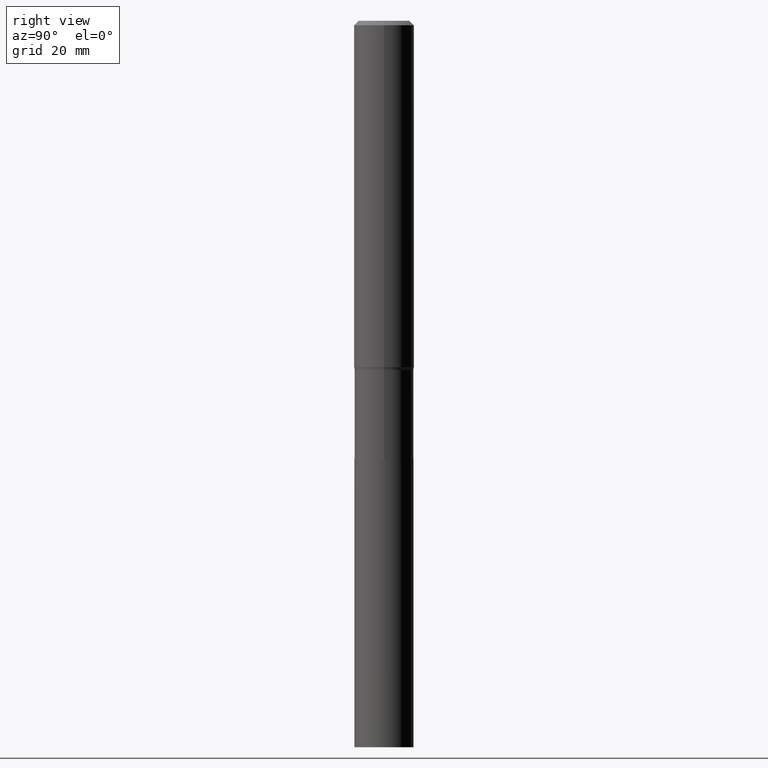
[diagram: clean part render]
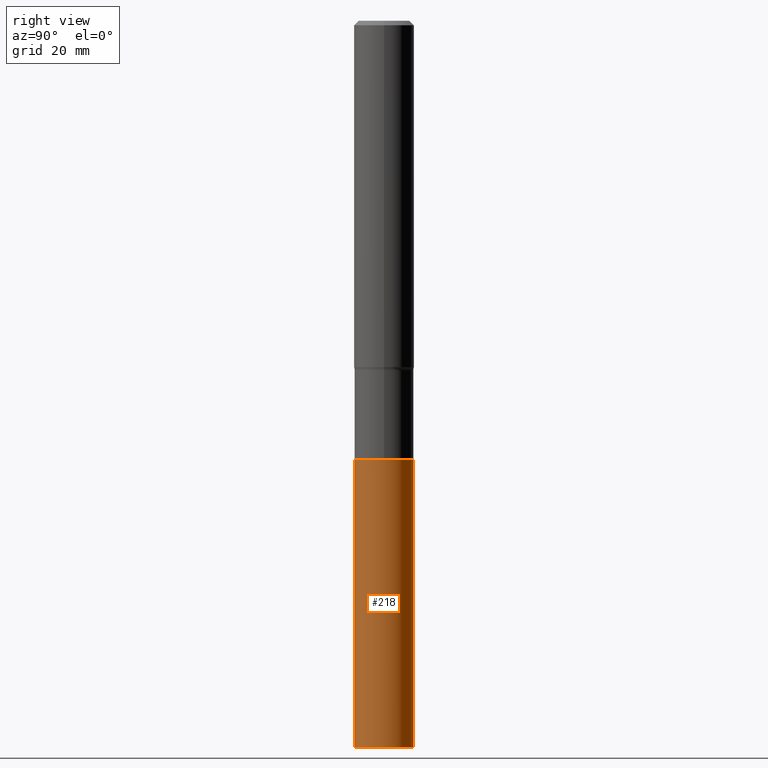
[diagram: same view with one face highlighted and labeled with its STEP entity id]
A machine part, right view. The second image highlights one B-rep face of the part: STEP entity #218.
In plain terms, the highlighted cylindrical surface (edge-blend (fillet) strip) has radius 5.9004 mm, axis along (-0, 0, 1).
Its self-contained STEP definition (entity closure, byte-faithful):
#6 = DIRECTION ( 'NONE',  ( -2.445459373819195632E-29, 3.491494846528029664E-15, 1.000000000000000000 ) ) ;
#26 = AXIS2_PLACEMENT_3D ( 'NONE', #360, #411, #195 ) ;
#31 = FACE_OUTER_BOUND ( 'NONE', #463, .T. ) ;
#35 = DIRECTION ( 'NONE',  ( -2.445459373819195632E-29, 3.491494846528030059E-15, 1.000000000000000000 ) ) ;
#36 = CARTESIAN_POINT ( 'NONE',  ( -1.622142230026380258E-15, -0.2323000000000199350, -5.708700000000000330 ) ) ;
#56 = VECTOR ( 'NONE', #375, 39.37007874015748143 ) ;
#59 = LINE ( 'NONE', #332, #212 ) ;
#63 = ORIENTED_EDGE ( 'NONE', *, *, #154, .F. ) ;
#71 = DIRECTION ( 'NONE',  ( -6.982962677686265922E-15, -1.000000000000000000, 2.351999994545211393E-15 ) ) ;
#72 = EDGE_CURVE ( 'NONE', #229, #157, #296, .T. ) ;
#101 = DIRECTION ( 'NONE',  ( -6.982962677686265922E-15, -1.000000000000000000, 2.351999994545211393E-15 ) ) ;
#107 = CARTESIAN_POINT ( 'NONE',  ( 1.650590775170852603E-15, 0.2322999999999879883, -3.444700000000000983 ) ) ;
#137 = CARTESIAN_POINT ( 'NONE',  ( -1.622142230026435478E-15, -0.2323000000000120246, -3.444700000000000095 ) ) ;
#140 = CARTESIAN_POINT ( 'NONE',  ( 8.423906396665941599E-29, -1.202710576791298553E-14, -3.444700000000000539 ) ) ;
#147 = CIRCLE ( 'NONE', #399, 0.2323000000000000065 ) ;
#154 = EDGE_CURVE ( 'NONE', #229, #365, #59, .T. ) ;
#156 = CARTESIAN_POINT ( 'NONE',  ( 1.650590775170824402E-15, 0.2322999999999800502, -5.708700000000002106 ) ) ;
#157 = VERTEX_POINT ( 'NONE', #156 ) ;
#168 = ORIENTED_EDGE ( 'NONE', *, *, #72, .T. ) ;
#172 = CYLINDRICAL_SURFACE ( 'NONE', #174, 0.2323000000000000065 ) ;
#174 = AXIS2_PLACEMENT_3D ( 'NONE', #213, #35, #101 ) ;
#175 = EDGE_CURVE ( 'NONE', #365, #401, #147, .T. ) ;
#193 = ORIENTED_EDGE ( 'NONE', *, *, #243, .T. ) ;
#195 = DIRECTION ( 'NONE',  ( -6.982962677686265922E-15, -1.000000000000000000, 4.703999989090422785E-15 ) ) ;
#212 = VECTOR ( 'NONE', #6, 39.37007874015748143 ) ;
#213 = CARTESIAN_POINT ( 'NONE',  ( 8.423906396665941599E-29, -1.202710576791298553E-14, -3.444700000000000539 ) ) ;
#217 = ORIENTED_EDGE ( 'NONE', *, *, #175, .F. ) ;
#218 = ADVANCED_FACE ( 'NONE', ( #31 ), #172, .T. ) ;
#229 = VERTEX_POINT ( 'NONE', #36 ) ;
#243 = EDGE_CURVE ( 'NONE', #157, #401, #318, .T. ) ;
#296 = CIRCLE ( 'NONE', #26, 0.2323000000000000065 ) ;
#318 = LINE ( 'NONE', #345, #56 ) ;
#332 = CARTESIAN_POINT ( 'NONE',  ( -1.622142230026435478E-15, -0.2323000000000120246, -3.444700000000000095 ) ) ;
#345 = CARTESIAN_POINT ( 'NONE',  ( 1.650590775170796792E-15, 0.2322999999999879883, -3.444700000000000983 ) ) ;
#360 = CARTESIAN_POINT ( 'NONE',  ( 1.396042641899260512E-28, -1.993185010045244784E-14, -5.708700000000001218 ) ) ;
#365 = VERTEX_POINT ( 'NONE', #137 ) ;
#375 = DIRECTION ( 'NONE',  ( -2.445459373819195632E-29, 3.491494846528029664E-15, 1.000000000000000000 ) ) ;
#387 = DIRECTION ( 'NONE',  ( -2.445459373819195632E-29, 3.491494846528030059E-15, 1.000000000000000000 ) ) ;
#399 = AXIS2_PLACEMENT_3D ( 'NONE', #140, #387, #71 ) ;
#401 = VERTEX_POINT ( 'NONE', #107 ) ;
#411 = DIRECTION ( 'NONE',  ( -2.445459373819195632E-29, 3.491494846528030059E-15, 1.000000000000000000 ) ) ;
#463 = EDGE_LOOP ( 'NONE', ( #168, #193, #217, #63 ) ) ;